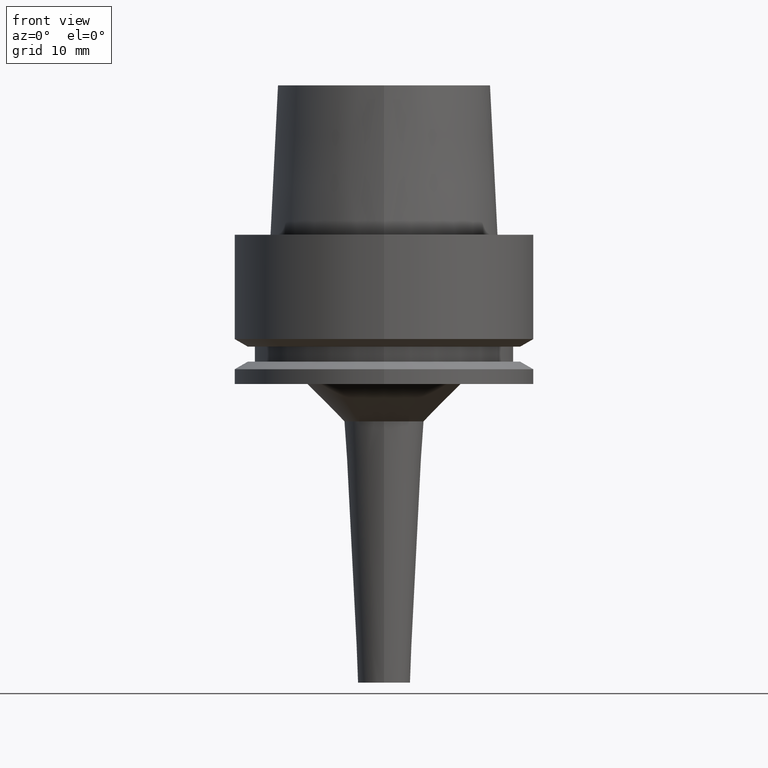
[diagram: clean part render]
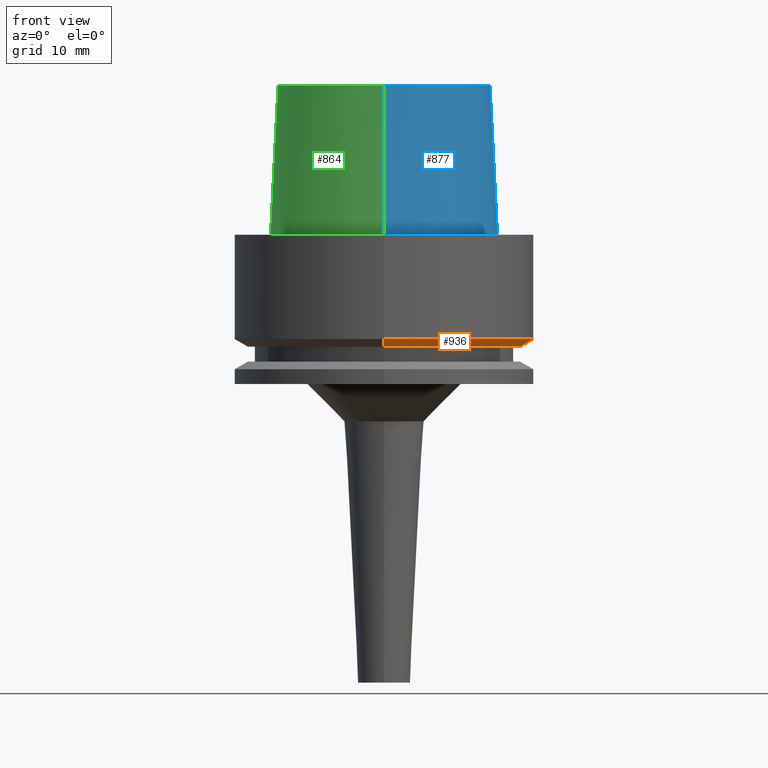
[diagram: same view with three faces highlighted in distinct colors, each labeled with its STEP entity id]
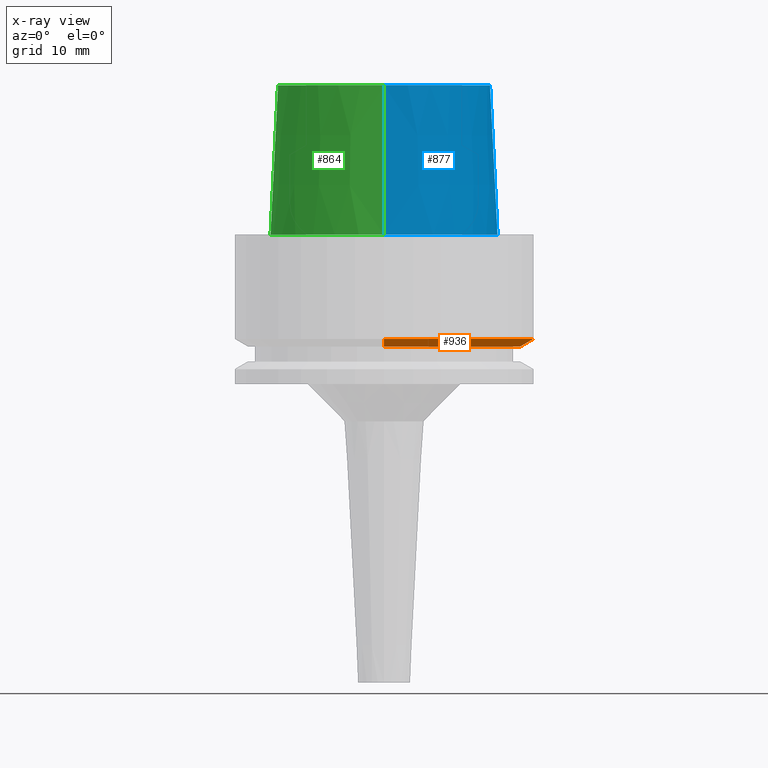
[diagram: x-ray of the same camera — body ghosted, the three highlighted faces saturated]
A machine part, front view with three faces highlighted in distinct colors.
The next image is the same camera in x-ray (body ghosted, the three faces saturated) — at least one of them is partly hidden behind the body in this view.
Their STEP definitions:

[orange] entity #936 — the highlighted conical surface has half-angle 60 deg.
#110=DIRECTION('',(0.E0,-8.660254037842E-1,-5.000000000005E-1));
#111=VECTOR('',#110,2.041451889235E0);
#112=CARTESIAN_POINT('',(0.E0,2.E1,-1.397927405538E1));
#113=LINE('',#112,#111);
#117=CARTESIAN_POINT('',(0.E0,0.E0,-1.397927405538E1));
#118=DIRECTION('',(0.E0,0.E0,1.E0));
#119=DIRECTION('',(0.E0,-1.E0,0.E0));
#120=AXIS2_PLACEMENT_3D('',#117,#118,#119);
#133=DIRECTION('',(0.E0,8.660254037842E-1,-5.000000000005E-1));
#134=VECTOR('',#133,2.041451889235E0);
#135=CARTESIAN_POINT('',(0.E0,-2.E1,-1.397927405538E1));
#136=LINE('',#135,#134);
#140=CARTESIAN_POINT('',(0.E0,0.E0,-1.5E1));
#141=DIRECTION('',(0.E0,0.E0,1.E0));
#142=DIRECTION('',(0.E0,-1.E0,0.E0));
#143=AXIS2_PLACEMENT_3D('',#140,#141,#142);
#736=CARTESIAN_POINT('',(0.E0,2.E1,-1.397927405538E1));
#737=VERTEX_POINT('',#736);
#738=CARTESIAN_POINT('',(0.E0,-2.E1,-1.397927405538E1));
#739=VERTEX_POINT('',#738);
#740=CARTESIAN_POINT('',(0.E0,1.823205080332E1,-1.5E1));
#741=VERTEX_POINT('',#740);
#742=CARTESIAN_POINT('',(0.E0,-1.823205080332E1,-1.5E1));
#743=VERTEX_POINT('',#742);
#922=CARTESIAN_POINT('',(0.E0,0.E0,-1.448963702769E1));
#923=DIRECTION('',(0.E0,0.E0,1.E0));
#924=DIRECTION('',(0.E0,1.E0,0.E0));
#925=AXIS2_PLACEMENT_3D('',#922,#923,#924);
#926=CONICAL_SURFACE('',#925,1.911602540166E1,6.E1);
#928=ORIENTED_EDGE('',*,*,#927,.T.);
#930=ORIENTED_EDGE('',*,*,#929,.F.);
#932=ORIENTED_EDGE('',*,*,#931,.F.);
#933=ORIENTED_EDGE('',*,*,#915,.T.);
#934=EDGE_LOOP('',(#928,#930,#932,#933));
#935=FACE_OUTER_BOUND('',#934,.F.);
#121=CIRCLE('',#120,2.E1);
#144=CIRCLE('',#143,1.823205080332E1);
#915=EDGE_CURVE('',#739,#737,#121,.T.);
#927=EDGE_CURVE('',#737,#741,#113,.T.);
#929=EDGE_CURVE('',#743,#741,#144,.T.);
#931=EDGE_CURVE('',#739,#743,#136,.T.);
#936=ADVANCED_FACE('',(#935),#926,.T.);

[blue] entity #877 — the highlighted conical surface has half-angle 2.862 deg.
#26=CARTESIAN_POINT('',(0.E0,0.E0,2.E1));
#27=DIRECTION('',(0.E0,0.E0,-1.E0));
#28=DIRECTION('',(0.E0,1.E0,0.E0));
#29=AXIS2_PLACEMENT_3D('',#26,#27,#28);
#50=DIRECTION('',(0.E0,-4.993752584497E-2,-9.987523434328E-1));
#51=VECTOR('',#50,2.002498430317E1);
#52=CARTESIAN_POINT('',(0.E0,-1.420000146306E1,2.E1));
#53=LINE('',#52,#51);
#57=DIRECTION('',(0.E0,4.993752584497E-2,-9.987523434328E-1));
#58=VECTOR('',#57,2.002498430317E1);
#59=CARTESIAN_POINT('',(0.E0,1.420000146306E1,2.E1));
#60=LINE('',#59,#58);
#80=CARTESIAN_POINT('',(0.E0,0.E0,6.821210263297E-13));
#81=DIRECTION('',(0.E0,0.E0,1.E0));
#82=DIRECTION('',(0.E0,-1.E0,0.E0));
#83=AXIS2_PLACEMENT_3D('',#80,#81,#82);
#720=CARTESIAN_POINT('',(0.E0,-1.420000146306E1,2.E1));
#721=CARTESIAN_POINT('',(0.E0,1.420000146306E1,2.E1));
#722=VERTEX_POINT('',#720);
#723=VERTEX_POINT('',#721);
#728=CARTESIAN_POINT('',(0.E0,1.519999963424E1,3.801403636317E-13));
#729=VERTEX_POINT('',#728);
#730=CARTESIAN_POINT('',(0.E0,-1.519999963424E1,3.801403636317E-13));
#731=VERTEX_POINT('',#730);
#865=CARTESIAN_POINT('',(0.E0,0.E0,1.E1));
#866=DIRECTION('',(0.E0,0.E0,-1.E0));
#867=DIRECTION('',(0.E0,-1.E0,0.E0));
#868=AXIS2_PLACEMENT_3D('',#865,#866,#867);
#869=CONICAL_SURFACE('',#868,1.470000054865E1,2.8624E0);
#870=ORIENTED_EDGE('',*,*,#855,.T.);
#872=ORIENTED_EDGE('',*,*,#871,.F.);
#873=ORIENTED_EDGE('',*,*,#858,.F.);
#874=ORIENTED_EDGE('',*,*,#839,.F.);
#875=EDGE_LOOP('',(#870,#872,#873,#874));
#876=FACE_OUTER_BOUND('',#875,.F.);
#30=CIRCLE('',#29,1.420000146306E1);
#84=CIRCLE('',#83,1.519999963424E1);
#839=EDGE_CURVE('',#723,#722,#30,.T.);
#855=EDGE_CURVE('',#723,#729,#60,.T.);
#858=EDGE_CURVE('',#722,#731,#53,.T.);
#871=EDGE_CURVE('',#731,#729,#84,.T.);
#877=ADVANCED_FACE('',(#876),#869,.T.);

[green] entity #864 — the highlighted conical surface has half-angle 2.862 deg.
#17=CARTESIAN_POINT('',(0.E0,0.E0,2.E1));
#18=DIRECTION('',(0.E0,0.E0,-1.E0));
#19=DIRECTION('',(0.E0,-1.E0,0.E0));
#20=AXIS2_PLACEMENT_3D('',#17,#18,#19);
#50=DIRECTION('',(0.E0,-4.993752584497E-2,-9.987523434328E-1));
#51=VECTOR('',#50,2.002498430317E1);
#52=CARTESIAN_POINT('',(0.E0,-1.420000146306E1,2.E1));
#53=LINE('',#52,#51);
#57=DIRECTION('',(0.E0,4.993752584497E-2,-9.987523434328E-1));
#58=VECTOR('',#57,2.002498430317E1);
#59=CARTESIAN_POINT('',(0.E0,1.420000146306E1,2.E1));
#60=LINE('',#59,#58);
#88=CARTESIAN_POINT('',(0.E0,0.E0,6.821210263297E-13));
#89=DIRECTION('',(0.E0,0.E0,1.E0));
#90=DIRECTION('',(0.E0,1.E0,0.E0));
#91=AXIS2_PLACEMENT_3D('',#88,#89,#90);
#720=CARTESIAN_POINT('',(0.E0,-1.420000146306E1,2.E1));
#721=CARTESIAN_POINT('',(0.E0,1.420000146306E1,2.E1));
#722=VERTEX_POINT('',#720);
#723=VERTEX_POINT('',#721);
#728=CARTESIAN_POINT('',(0.E0,1.519999963424E1,3.801403636317E-13));
#729=VERTEX_POINT('',#728);
#730=CARTESIAN_POINT('',(0.E0,-1.519999963424E1,3.801403636317E-13));
#731=VERTEX_POINT('',#730);
#850=CARTESIAN_POINT('',(0.E0,0.E0,1.E1));
#851=DIRECTION('',(0.E0,0.E0,-1.E0));
#852=DIRECTION('',(0.E0,-1.E0,0.E0));
#853=AXIS2_PLACEMENT_3D('',#850,#851,#852);
#854=CONICAL_SURFACE('',#853,1.470000054865E1,2.8624E0);
#856=ORIENTED_EDGE('',*,*,#855,.F.);
#857=ORIENTED_EDGE('',*,*,#837,.F.);
#859=ORIENTED_EDGE('',*,*,#858,.T.);
#861=ORIENTED_EDGE('',*,*,#860,.F.);
#862=EDGE_LOOP('',(#856,#857,#859,#861));
#863=FACE_OUTER_BOUND('',#862,.F.);
#21=CIRCLE('',#20,1.420000146306E1);
#92=CIRCLE('',#91,1.519999963424E1);
#837=EDGE_CURVE('',#722,#723,#21,.T.);
#855=EDGE_CURVE('',#723,#729,#60,.T.);
#858=EDGE_CURVE('',#722,#731,#53,.T.);
#860=EDGE_CURVE('',#729,#731,#92,.T.);
#864=ADVANCED_FACE('',(#863),#854,.T.);